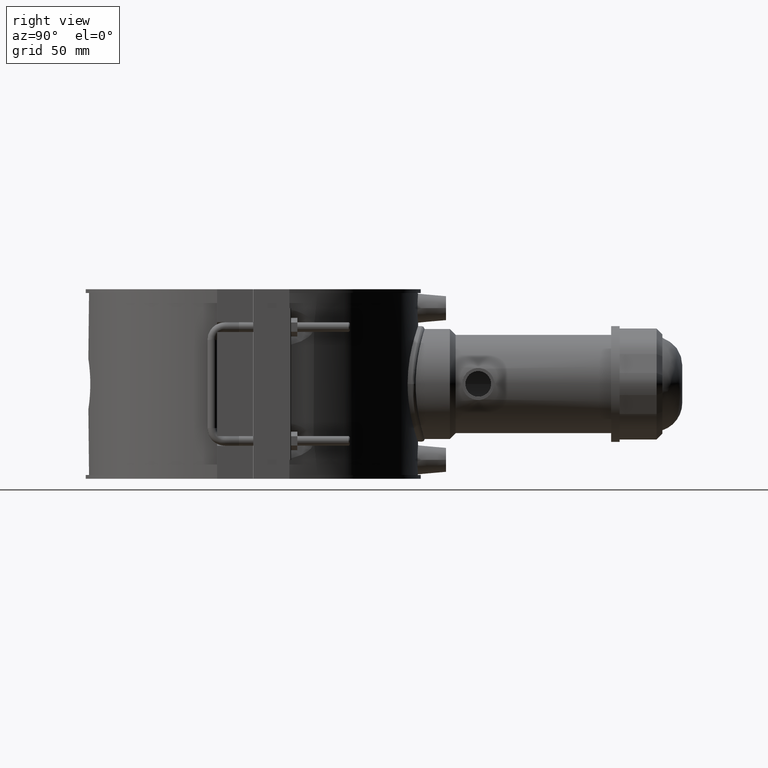
[diagram: clean part render]
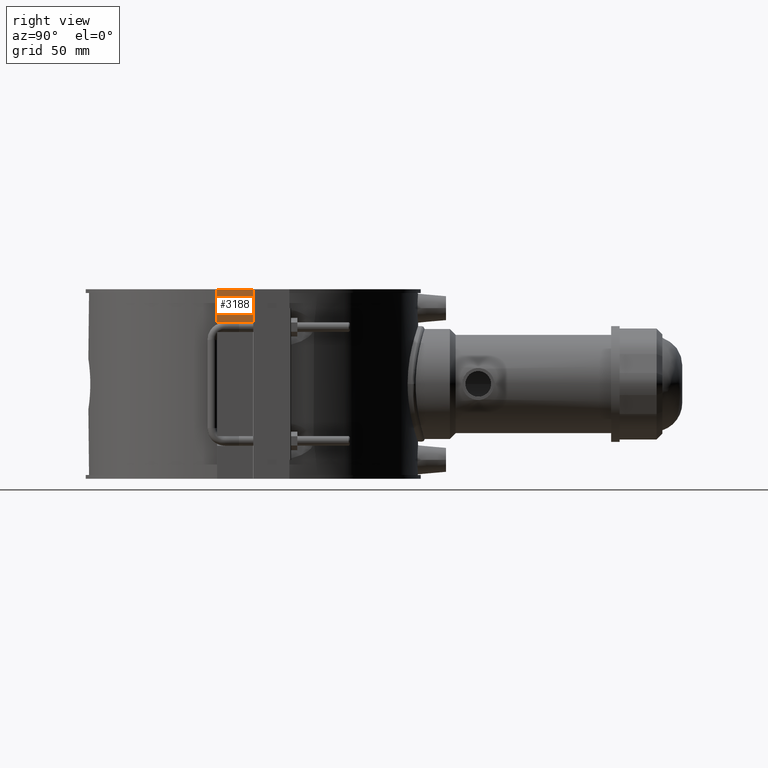
[diagram: same view with one face highlighted and labeled with its STEP entity id]
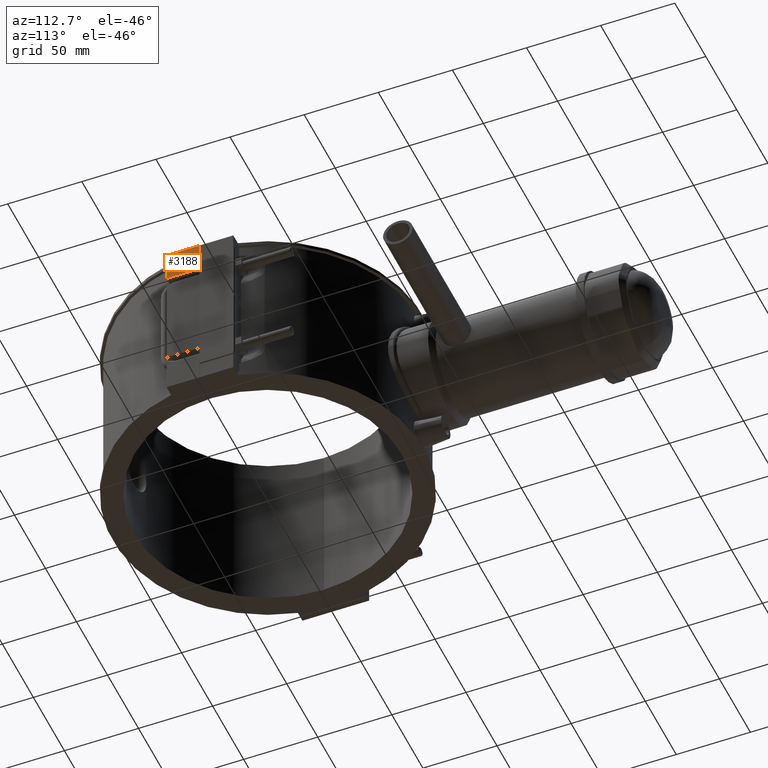
[diagram: same view with one face highlighted and labeled with its STEP entity id]
A machine part, right view. The second image highlights one B-rep face of the part: STEP entity #3188.
A second angle (auxiliary view) of the same face is appended — the face is thin or edge-on in the first view.
In plain terms, the highlighted planar face has unit normal (1, 0, 0).
Its self-contained STEP definition (entity closure, byte-faithful):
#142=LINE('',#5454,#421);
#294=LINE('',#6413,#573);
#307=LINE('',#6436,#586);
#308=LINE('',#6438,#587);
#421=VECTOR('',#3826,20.6);
#573=VECTOR('',#4272,22.45);
#586=VECTOR('',#4291,20.6);
#587=VECTOR('',#4294,22.45);
#923=FACE_OUTER_BOUND('',#1158,.T.);
#1158=EDGE_LOOP('',(#2812,#2813,#2814,#2815));
#1415=VERTEX_POINT('',#5451);
#1416=VERTEX_POINT('',#5453);
#1564=VERTEX_POINT('',#6411);
#1571=VERTEX_POINT('',#6434);
#1756=EDGE_CURVE('',#1415,#1416,#142,.T.);
#1984=EDGE_CURVE('',#1415,#1564,#294,.T.);
#1997=EDGE_CURVE('',#1564,#1571,#307,.T.);
#1998=EDGE_CURVE('',#1416,#1571,#308,.T.);
#2812=ORIENTED_EDGE('',*,*,#1984,.T.);
#2813=ORIENTED_EDGE('',*,*,#1997,.T.);
#2814=ORIENTED_EDGE('',*,*,#1998,.F.);
#2815=ORIENTED_EDGE('',*,*,#1756,.F.);
#3006=PLANE('',#3471);
#3188=ADVANCED_FACE('',(#923),#3006,.T.);
#3471=AXIS2_PLACEMENT_3D('',#6437,#4292,#4293);
#3826=DIRECTION('',(0.,0.,1.));
#4272=DIRECTION('',(0.,1.,0.));
#4291=DIRECTION('',(0.,0.,1.));
#4292=DIRECTION('center_axis',(1.,0.,0.));
#4293=DIRECTION('ref_axis',(0.,1.,0.));
#4294=DIRECTION('',(0.,1.,0.));
#5451=CARTESIAN_POINT('',(109.5,-22.5,38.4));
#5453=CARTESIAN_POINT('',(109.5,-22.5,59.));
#5454=CARTESIAN_POINT('',(109.5,-22.5,0.));
#6411=CARTESIAN_POINT('',(109.5,-0.0499999999999989,38.4));
#6413=CARTESIAN_POINT('',(109.5,-22.5,38.4));
#6434=CARTESIAN_POINT('',(109.5,-0.0499999999999989,59.));
#6436=CARTESIAN_POINT('',(109.5,-0.0499999999999989,-29.5));
#6437=CARTESIAN_POINT('Origin',(109.5,-22.5,0.));
#6438=CARTESIAN_POINT('',(109.5,-22.5,59.));